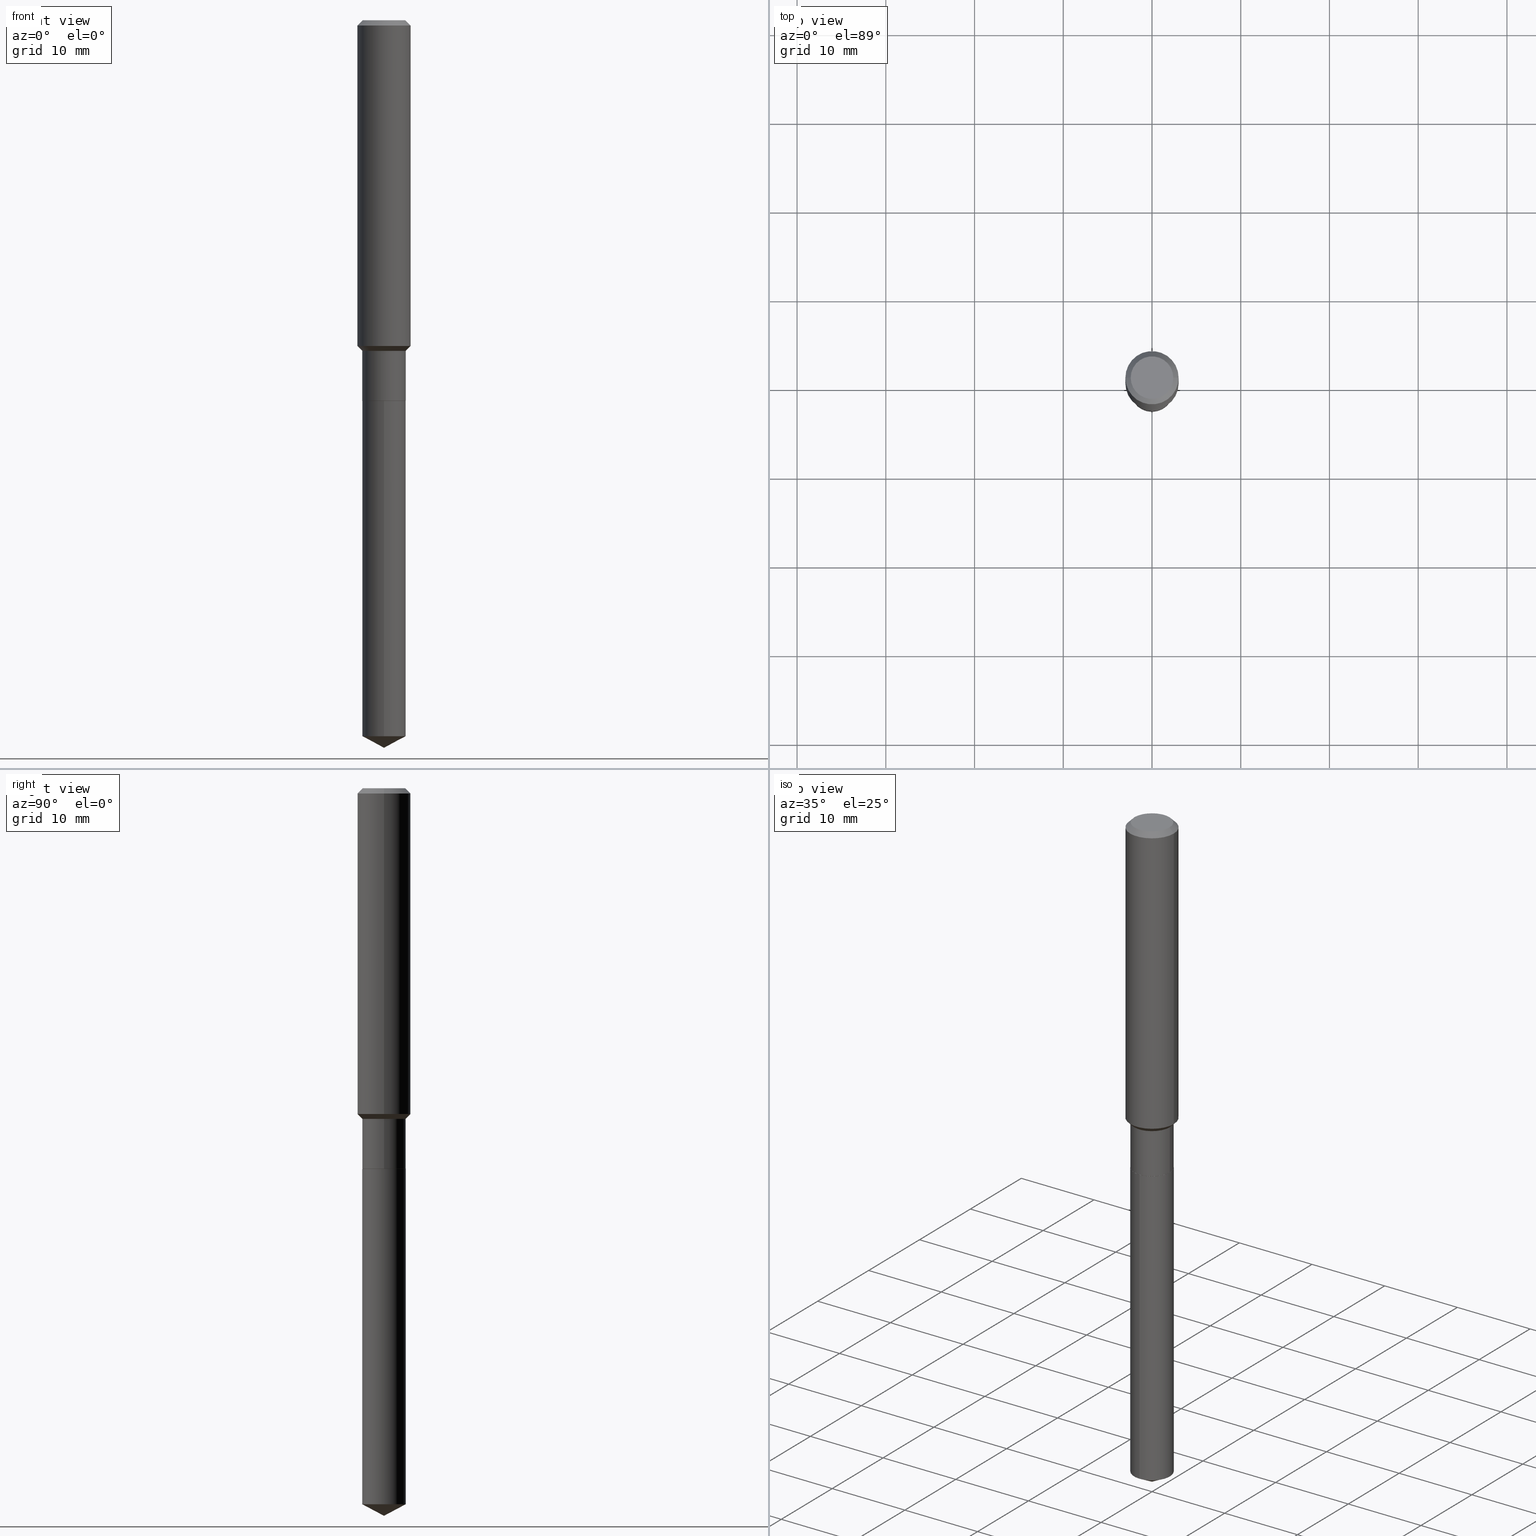
[diagram: canonical four-view strip — front | top / right | iso, engineering-drawing reading convention]
A machine part, canonical four-view strip (front | top / right | iso — engineering-drawing reading convention). The complete STEP part file that produces these views, byte-faithful:
ISO-10303-21;
HEADER;
FILE_DESCRIPTION (( 'STEP AP203' ),
    '1' );
FILE_NAME ('64819.STEP',
    '2024-04-24T19:00:35',
    ( '' ),
    ( '' ),
    'SwSTEP 2.0',
    'SolidWorks 2023',
    '' );
FILE_SCHEMA (( 'CONFIG_CONTROL_DESIGN' ));
ENDSEC;

DATA;
#1 = AXIS2_PLACEMENT_3D ( 'NONE', #297, #180, #107 ) ;
#2 = LOCAL_TIME ( 15, 0, 35.00000000000000000, #32 ) ;
#3 = DIRECTION ( 'NONE',  ( -2.445468806185136597E-29, 3.491481338843145583E-15, 1.000000000000000000 ) ) ;
#4 = CARTESIAN_POINT ( 'NONE',  ( -6.735067502627990177E-16, -0.09645000000000587825, -1.688899999999999846 ) ) ;
#5 = EDGE_LOOP ( 'NONE', ( #472, #388, #442, #458 ) ) ;
#6 = EDGE_CURVE ( 'NONE', #198, #381, #96, .T. ) ;
#7 = CARTESIAN_POINT ( 'NONE',  ( 4.128929532362984826E-29, -5.895017092502767543E-15, -1.688400000000000123 ) ) ;
#8 = ORIENTED_EDGE ( 'NONE', *, *, #49, .F. ) ;
#9 = DIRECTION ( 'NONE',  ( -6.982962677686266711E-15, -1.000000000000000000, 3.541896320645574279E-15 ) ) ;
#10 = CONICAL_SURFACE ( 'NONE', #65, 0.09594999999999997975, 0.7853981633975507526 ) ;
#11 = APPROVAL_PERSON_ORGANIZATION ( #215, #446, #102 ) ;
#12 = ORIENTED_EDGE ( 'NONE', *, *, #376, .T. ) ;
#13 = EDGE_CURVE ( 'NONE', #275, #189, #57, .T. ) ;
#14 = DIRECTION ( 'NONE',  ( -2.445459451531945961E-29, 3.491494735238948529E-15, 1.000000000000000000 ) ) ;
#15 = VERTEX_POINT ( 'NONE', #131 ) ;
#16 = ORIENTED_EDGE ( 'NONE', *, *, #473, .T. ) ;
#17 = AXIS2_PLACEMENT_3D ( 'NONE', #416, #337, #485 ) ;
#18 = ORIENTED_EDGE ( 'NONE', *, *, #196, .T. ) ;
#19 = CONICAL_SURFACE ( 'NONE', #26, 74.04434902938325536, 1.082104136236484937 ) ;
#20 = ADVANCED_FACE ( 'NONE', ( #286 ), #434, .T. ) ;
#21 = CARTESIAN_POINT ( 'NONE',  ( 7.894708622606584562E-29, -1.127154720342615507E-14, -3.228299999999999947 ) ) ;
#22 = DIRECTION ( 'NONE',  ( -2.445468806185136597E-29, 3.491481338843145583E-15, 1.000000000000000000 ) ) ;
#23 = ORIENTED_EDGE ( 'NONE', *, *, #118, .T. ) ;
#24 = CARTESIAN_POINT ( 'NONE',  ( 4.128929532362984826E-29, -5.895017092502767543E-15, -1.688400000000000123 ) ) ;
#25 = DIRECTION ( 'NONE',  ( 0.7071067811866199593, -2.468850131083015945E-15, 0.7071067811864750752 ) ) ;
#26 = AXIS2_PLACEMENT_3D ( 'NONE', #345, #348, #9 ) ;
#27 = PERSON_AND_ORGANIZATION_ROLE ( 'design_supplier' ) ;
#28 = EDGE_CURVE ( 'NONE', #198, #124, #397, .T. ) ;
#29 = CARTESIAN_POINT ( 'NONE',  ( 0.1180999999999999966, -8.926936027602933910E-16, -0.02362000000000014088 ) ) ;
#30 = APPROVAL_STATUS ( 'not_yet_approved' ) ;
#31 = DIRECTION ( 'NONE',  ( 1.000000000000000000, -6.982962677686269866E-15, 0.000000000000000000 ) ) ;
#32 = COORDINATED_UNIVERSAL_TIME_OFFSET ( 5, 0, .BEHIND. ) ;
#33 = DIRECTION ( 'NONE',  ( 1.000000000000000000, -6.982962677686269866E-15, 0.000000000000000000 ) ) ;
#34 = EDGE_CURVE ( 'NONE', #230, #267, #169, .T. ) ;
#35 = AXIS2_PLACEMENT_3D ( 'NONE', #89, #194, #274 ) ;
#36 = AXIS2_PLACEMENT_3D ( 'NONE', #353, #130, #281 ) ;
#37 = CARTESIAN_POINT ( 'NONE',  ( 4.130152266766077627E-29, -5.896762833172189046E-15, -1.688900000000000068 ) ) ;
#38 = CARTESIAN_POINT ( 'NONE',  ( 3.587747285554214477E-29, -5.122352272216779298E-15, -1.467100000000000071 ) ) ;
#39 = DIRECTION ( 'NONE',  ( -2.445468806185136597E-29, 3.491481338843145583E-15, 1.000000000000000000 ) ) ;
#40 = CLOSED_SHELL ( 'NONE', ( #488, #356, #384, #347, #184 ) ) ;
#41 = ORGANIZATION ( 'UNSPECIFIED', 'UNSPECIFIED', '' ) ;
#42 = FACE_OUTER_BOUND ( 'NONE', #352, .T. ) ;
#43 = CC_DESIGN_PERSON_AND_ORGANIZATION_ASSIGNMENT ( #295, #176, ( #420 ) ) ;
#44 = ORIENTED_EDGE ( 'NONE', *, *, #34, .F. ) ;
#45 = DIRECTION ( 'NONE',  ( 2.445468806185136597E-29, -3.491481338843145583E-15, -1.000000000000000000 ) ) ;
#46 = ORIENTED_EDGE ( 'NONE', *, *, #149, .T. ) ;
#47 = CARTESIAN_POINT ( 'NONE',  ( 5.776197320209327532E-31, -8.246878922347559293E-17, -0.02362000000000014088 ) ) ;
#48 = ORIENTED_EDGE ( 'NONE', *, *, #212, .F. ) ;
#49 = EDGE_CURVE ( 'NONE', #193, #467, #400, .T. ) ;
#50 = VECTOR ( 'NONE', #148, 39.37007874015748143 ) ;
#51 = DIRECTION ( 'NONE',  ( 1.000000000000000000, -6.982962677686266711E-15, 0.000000000000000000 ) ) ;
#52 = ORIENTED_EDGE ( 'NONE', *, *, #118, .F. ) ;
#53 = DIRECTION ( 'NONE',  ( 1.000000000000000000, -6.982962677686265922E-15, 4.876176775795935793E-29 ) ) ;
#54 = ORIENTED_EDGE ( 'NONE', *, *, #341, .T. ) ;
#55 = DIRECTION ( 'NONE',  ( 1.000000000000000000, -6.982962677686264344E-15, 0.000000000000000000 ) ) ;
#56 = EDGE_LOOP ( 'NONE', ( #329, #88, #316 ) ) ;
#57 = LINE ( 'NONE', #280, #242 ) ;
#58 = ADVANCED_FACE ( 'NONE', ( #210 ), #60, .T. ) ;
#59 = PERSON_AND_ORGANIZATION_ROLE ( 'design_owner' ) ;
#60 = CYLINDRICAL_SURFACE ( 'NONE', #200, 0.1181000000000000799 ) ;
#61 = PERSON_AND_ORGANIZATION_ROLE ( 'creator' ) ;
#62 = DIRECTION ( 'NONE',  ( -2.445468806185136597E-29, 3.491481338843145583E-15, 1.000000000000000000 ) ) ;
#63 = EDGE_CURVE ( 'NONE', #230, #239, #350, .T. ) ;
#64 = DIRECTION ( 'NONE',  ( 6.273719981627760554E-15, 0.8829475928589289868, 0.4694715627858871976 ) ) ;
#65 = AXIS2_PLACEMENT_3D ( 'NONE', #294, #377, #147 ) ;
#66 = AXIS2_PLACEMENT_3D ( 'NONE', #460, #45, #269 ) ;
#67 = APPROVAL_DATE_TIME ( #145, #410 ) ;
#68 = DIRECTION ( 'NONE',  ( -1.000000000000000000, 6.982962677686265922E-15, -4.876176775795935793E-29 ) ) ;
#69 = LINE ( 'NONE', #335, #104 ) ;
#70 = EDGE_CURVE ( 'NONE', #467, #248, #480, .T. ) ;
#71 = PRODUCT_DEFINITION_SHAPE ( 'NONE', 'NONE',  #112 ) ;
#72 = DIRECTION ( 'NONE',  ( -2.445468806185136597E-29, 3.491481338843145583E-15, 1.000000000000000000 ) ) ;
#73 = AXIS2_PLACEMENT_3D ( 'NONE', #216, #452, #108 ) ;
#74 = APPROVAL_PERSON_ORGANIZATION ( #325, #431, #322 ) ;
#75 = DIRECTION ( 'NONE',  ( -6.982962677686265133E-15, -1.000000000000000000, 2.832398127179122126E-15 ) ) ;
#76 = LINE ( 'NONE', #299, #317 ) ;
#77 = CC_DESIGN_PERSON_AND_ORGANIZATION_ASSIGNMENT ( #402, #61, ( #112 ) ) ;
#78 = FACE_OUTER_BOUND ( 'NONE', #199, .T. ) ;
#79 = EDGE_LOOP ( 'NONE', ( #91, #423, #425, #264 ) ) ;
#80 = AXIS2_PLACEMENT_3D ( 'NONE', #161, #417, #152 ) ;
#81 = PRODUCT_DEFINITION_FORMATION_WITH_SPECIFIED_SOURCE ( 'ANY', '', #285, .NOT_KNOWN. ) ;
#82 = CARTESIAN_POINT ( 'NONE',  ( 4.716267017698007905E-46, -6.733579360998555036E-32, -1.928573779297252010E-17 ) ) ;
#83 = EDGE_LOOP ( 'NONE', ( #314, #433, #162, #323 ) ) ;
#84 = CARTESIAN_POINT ( 'NONE',  ( 4.130152266766077627E-29, -5.896762833172189046E-15, -1.688900000000000068 ) ) ;
#85 = ORIENTED_EDGE ( 'NONE', *, *, #341, .F. ) ;
#86 = EDGE_CURVE ( 'NONE', #15, #267, #327, .T. ) ;
#87 = CARTESIAN_POINT ( 'NONE',  ( 3.587747285554214477E-29, -5.122352272216779298E-15, -1.467100000000000071 ) ) ;
#88 = ORIENTED_EDGE ( 'NONE', *, *, #28, .T. ) ;
#89 = CARTESIAN_POINT ( 'NONE',  ( 3.587747285554214477E-29, -5.122352272216779298E-15, -1.467100000000000071 ) ) ;
#90 = ORIENTED_EDGE ( 'NONE', *, *, #70, .F. ) ;
#91 = ORIENTED_EDGE ( 'NONE', *, *, #376, .F. ) ;
#92 = EDGE_CURVE ( 'NONE', #275, #15, #486, .T. ) ;
#93 = EDGE_LOOP ( 'NONE', ( #52, #46, #346, #362 ) ) ;
#94 = DIRECTION ( 'NONE',  ( -2.445468806185136597E-29, 3.491481338843145583E-15, 1.000000000000000000 ) ) ;
#95 = AXIS2_PLACEMENT_3D ( 'NONE', #37, #370, #31 ) ;
#96 = LINE ( 'NONE', #282, #379 ) ;
#97 = LINE ( 'NONE', #166, #117 ) ;
#98 = DIRECTION ( 'NONE',  ( -2.445468806185136597E-29, 3.491481338843145583E-15, 1.000000000000000000 ) ) ;
#99 = ADVANCED_FACE ( 'NONE', ( #450 ), #255, .F. ) ;
#100 = APPLICATION_PROTOCOL_DEFINITION ( 'international standard', 'config_control_design', 1994, #478 ) ;
#101 = CARTESIAN_POINT ( 'NONE',  ( 0.09594999999999997975, -6.566778102096186571E-15, -1.688900000000000068 ) ) ;
#102 = APPROVAL_ROLE ( '' ) ;
#103 = DIRECTION ( 'NONE',  ( 1.000000000000000000, -6.982962677686267499E-15, 0.000000000000000000 ) ) ;
#104 = VECTOR ( 'NONE', #214, 39.37007874015748143 ) ;
#105 = SECURITY_CLASSIFICATION_LEVEL ( 'unclassified' ) ;
#106 = CARTESIAN_POINT ( 'NONE',  ( 0.1181000000000001632, -5.871449593465574484E-15, -1.445450000000000124 ) ) ;
#107 = DIRECTION ( 'NONE',  ( 6.982962677686265922E-15, 1.000000000000000000, -3.491494735238948529E-15 ) ) ;
#108 = DIRECTION ( 'NONE',  ( 1.000000000000000000, -6.982962677686269866E-15, 0.000000000000000000 ) ) ;
#109 = LOCAL_TIME ( 15, 0, 35.00000000000000000, #254 ) ;
#110 = AXIS2_PLACEMENT_3D ( 'NONE', #361, #315, #396 ) ;
#111 = DIRECTION ( 'NONE',  ( 1.000000000000000000, -6.982962677686267499E-15, 0.000000000000000000 ) ) ;
#112 = PRODUCT_DEFINITION ( 'UNKNOWN', '', #81, #412 ) ;
#113 = DIRECTION ( 'NONE',  ( -2.445459451531945961E-29, 3.491494735238948529E-15, 1.000000000000000000 ) ) ;
#114 = DIRECTION ( 'NONE',  ( -6.982962677686265133E-15, -1.000000000000000000, 2.832398127179122126E-15 ) ) ;
#115 = EDGE_LOOP ( 'NONE', ( #349, #223, #436, #344 ) ) ;
#116 = VECTOR ( 'NONE', #261, 39.37007874015748143 ) ;
#117 = VECTOR ( 'NONE', #404, 39.37007874015748143 ) ;
#118 = EDGE_CURVE ( 'NONE', #463, #405, #76, .T. ) ;
#119 = CARTESIAN_POINT ( 'NONE',  ( 6.853184686406942899E-16, 0.09644999999999409601, -1.688900000000000290 ) ) ;
#120 = ORIENTED_EDGE ( 'NONE', *, *, #165, .T. ) ;
#121 = CARTESIAN_POINT ( 'NONE',  ( 0.000000000000000000, 0.000000000000000000, 0.000000000000000000 ) ) ;
#122 = EDGE_LOOP ( 'NONE', ( #312, #23, #228, #8 ) ) ;
#123 = FACE_OUTER_BOUND ( 'NONE', #115, .T. ) ;
#124 = VERTEX_POINT ( 'NONE', #455 ) ;
#125 = CIRCLE ( 'NONE', #95, 0.09594999999999997975 ) ;
#126 = CARTESIAN_POINT ( 'NONE',  ( 0.09644999999999999407, -6.568523842765608074E-15, -1.688400000000000123 ) ) ;
#127 = LOCAL_TIME ( 15, 0, 35.00000000000000000, #484 ) ;
#128 = EDGE_LOOP ( 'NONE', ( #16, #120, #48, #90 ) ) ;
#129 = EDGE_CURVE ( 'NONE', #124, #307, #411, .T. ) ;
#130 = DIRECTION ( 'NONE',  ( -2.445459451531945961E-29, 3.491494735238948529E-15, 1.000000000000000000 ) ) ;
#131 = CARTESIAN_POINT ( 'NONE',  ( 0.09447999999999998066, -7.704367267948738690E-16, -1.928573779296752193E-17 ) ) ;
#132 = FACE_OUTER_BOUND ( 'NONE', #272, .T. ) ;
#133 = DIRECTION ( 'NONE',  ( -0.7071067811865459074, 2.468850131082240100E-15, -0.7071067811865491270 ) ) ;
#134 = EDGE_CURVE ( 'NONE', #381, #305, #69, .T. ) ;
#135 = AXIS2_PLACEMENT_3D ( 'NONE', #321, #208, #241 ) ;
#136 = ORIENTED_EDGE ( 'NONE', *, *, #149, .F. ) ;
#137 = COORDINATED_UNIVERSAL_TIME_OFFSET ( 5, 0, .BEHIND. ) ;
#138 = ORIENTED_EDGE ( 'NONE', *, *, #13, .T. ) ;
#139 = CALENDAR_DATE ( 2024, 24, 4 ) ;
#140 = CARTESIAN_POINT ( 'NONE',  ( -0.09644999999999996632, 6.853184686406163899E-16, -4.744312894550855181E-30 ) ) ;
#141 = CALENDAR_DATE ( 2024, 24, 4 ) ;
#142 = CARTESIAN_POINT ( 'NONE',  ( 0.09594999999999997975, -6.566778102096186571E-15, -1.688900000000000068 ) ) ;
#143 = CIRCLE ( 'NONE', #224, 0.09644999999999995244 ) ;
#144 = AXIS2_PLACEMENT_3D ( 'NONE', #168, #197, #279 ) ;
#145 = DATE_AND_TIME ( #139, #2 ) ;
#146 = LINE ( 'NONE', #330, #173 ) ;
#147 = DIRECTION ( 'NONE',  ( 1.000000000000000000, -6.982962677686269866E-15, 0.000000000000000000 ) ) ;
#148 = DIRECTION ( 'NONE',  ( -2.445459451531945961E-29, 3.491494735238948529E-15, 1.000000000000000000 ) ) ;
#149 = EDGE_CURVE ( 'NONE', #463, #193, #125, .T. ) ;
#150 = CIRCLE ( 'NONE', #406, 0.1180999999999999966 ) ;
#151 = LOCAL_TIME ( 15, 0, 35.00000000000000000, #475 ) ;
#152 = DIRECTION ( 'NONE',  ( 1.000000000000000000, -6.982962677686263555E-15, 0.000000000000000000 ) ) ;
#153 = CYLINDRICAL_SURFACE ( 'NONE', #235, 0.09644999999999999407 ) ;
#154 = ORIENTED_EDGE ( 'NONE', *, *, #296, .T. ) ;
#155 = ADVANCED_FACE ( 'NONE', ( #256 ), #333, .T. ) ;
#156 = DIRECTION ( 'NONE',  ( 1.000000000000000000, -6.982962677686266711E-15, 0.000000000000000000 ) ) ;
#157 = VERTEX_POINT ( 'NONE', #482 ) ;
#158 = AXIS2_PLACEMENT_3D ( 'NONE', #304, #188, #53 ) ;
#159 = CYLINDRICAL_SURFACE ( 'NONE', #252, 0.1181000000000000799 ) ;
#160 = ORIENTED_EDGE ( 'NONE', *, *, #28, .F. ) ;
#161 = CARTESIAN_POINT ( 'NONE',  ( 3.534802885900305926E-29, -5.046761701230824643E-15, -1.445450000000000124 ) ) ;
#162 = ORIENTED_EDGE ( 'NONE', *, *, #70, .T. ) ;
#163 =( CONVERSION_BASED_UNIT ( 'INCH', #172 ) LENGTH_UNIT ( ) NAMED_UNIT ( #432 ) );
#164 = EDGE_LOOP ( 'NONE', ( #171, #354, #138, #465 ) ) ;
#165 = EDGE_CURVE ( 'NONE', #405, #157, #253, .T. ) ;
#166 = CARTESIAN_POINT ( 'NONE',  ( 0.09644999999999995244, -5.795859022479619040E-15, -1.467100000000000071 ) ) ;
#167 = ORIENTED_EDGE ( 'NONE', *, *, #273, .F. ) ;
#168 = CARTESIAN_POINT ( 'NONE',  ( 4.130152266766077627E-29, -5.896762833172189046E-15, -1.688900000000000068 ) ) ;
#169 = LINE ( 'NONE', #474, #276 ) ;
#170 = APPROVAL_STATUS ( 'not_yet_approved' ) ;
#171 = ORIENTED_EDGE ( 'NONE', *, *, #86, .F. ) ;
#172 = LENGTH_MEASURE_WITH_UNIT ( LENGTH_MEASURE( 0.02539999999999999897 ), #394 );
#173 = VECTOR ( 'NONE', #219, 39.37007874015748143 ) ;
#174 = CONICAL_SURFACE ( 'NONE', #66, 0.1180999999999999966, 0.7853981633974460586 ) ;
#175 = DIRECTION ( 'NONE',  ( -2.445468806185136877E-29, 3.491481338843145188E-15, 1.000000000000000000 ) ) ;
#176 = PERSON_AND_ORGANIZATION_ROLE ( 'classification_officer' ) ;
#177 = ORIENTED_EDGE ( 'NONE', *, *, #63, .F. ) ;
#178 = DIRECTION ( 'NONE',  ( 0.7071067811865459074, -7.319954787623249734E-15, -0.7071067811865491270 ) ) ;
#179 = CC_DESIGN_PERSON_AND_ORGANIZATION_ASSIGNMENT ( #284, #59, ( #285 ) ) ;
#180 = DIRECTION ( 'NONE',  ( 2.445459451531945400E-29, -3.491494735238948529E-15, -1.000000000000000000 ) ) ;
#181 = AXIS2_PLACEMENT_3D ( 'NONE', #351, #302, #156 ) ;
#182 = CIRCLE ( 'NONE', #144, 0.09644999999999999407 ) ;
#183 = CARTESIAN_POINT ( 'NONE',  ( 6.853184686406577065E-16, 0.09644999999999409601, -1.688900000000000290 ) ) ;
#184 = ADVANCED_FACE ( 'NONE', ( #413 ), #291, .F. ) ;
#185 = CARTESIAN_POINT ( 'NONE',  ( 4.130152266766077627E-29, -5.896762833172189046E-15, -1.688900000000000068 ) ) ;
#186 = DIRECTION ( 'NONE',  ( -0.7071067811866199593, 7.493145998870616062E-15, 0.7071067811864750752 ) ) ;
#187 = VECTOR ( 'NONE', #178, 39.37007874015748143 ) ;
#188 = DIRECTION ( 'NONE',  ( -2.438088387897960049E-29, 3.491481338843145188E-15, 1.000000000000000000 ) ) ;
#189 = VERTEX_POINT ( 'NONE', #444 ) ;
#190 = LINE ( 'NONE', #391, #202 ) ;
#191 = ORIENTED_EDGE ( 'NONE', *, *, #13, .F. ) ;
#192 = CARTESIAN_POINT ( 'NONE',  ( 0.000000000000000000, 0.000000000000000000, 0.000000000000000000 ) ) ;
#193 = VERTEX_POINT ( 'NONE', #142 ) ;
#194 = DIRECTION ( 'NONE',  ( -2.445468806185136597E-29, 3.491481338843145583E-15, 1.000000000000000000 ) ) ;
#195 = EDGE_LOOP ( 'NONE', ( #429, #154, #355, #471 ) ) ;
#196 = EDGE_CURVE ( 'NONE', #239, #189, #146, .T. ) ;
#197 = DIRECTION ( 'NONE',  ( -2.445459451531945961E-29, 3.491494735238948529E-15, 1.000000000000000000 ) ) ;
#198 = VERTEX_POINT ( 'NONE', #490 ) ;
#199 = EDGE_LOOP ( 'NONE', ( #319, #136 ) ) ;
#200 = AXIS2_PLACEMENT_3D ( 'NONE', #440, #98, #246 ) ;
#201 = MECHANICAL_CONTEXT ( 'NONE', #478, 'mechanical' ) ;
#202 = VECTOR ( 'NONE', #456, 39.37007874015748143 ) ;
#203 = DIRECTION ( 'NONE',  ( -6.165590087286828929E-15, -0.8829475928589255451, 0.4694715627858933038 ) ) ;
#204 = EDGE_CURVE ( 'NONE', #381, #124, #259, .T. ) ;
#205 = APPLICATION_PROTOCOL_DEFINITION ( 'international standard', 'config_control_design', 1994, #263 ) ;
#206 = EDGE_LOOP ( 'NONE', ( #289, #54 ) ) ;
#207 = CYLINDRICAL_SURFACE ( 'NONE', #36, 0.09644999999999999407 ) ;
#208 = DIRECTION ( 'NONE',  ( -2.445468806185136597E-29, 3.491481338843145583E-15, 1.000000000000000000 ) ) ;
#209 = PERSON_AND_ORGANIZATION ( #220, #41 ) ;
#210 = FACE_OUTER_BOUND ( 'NONE', #395, .T. ) ;
#211 = DATE_TIME_ROLE ( 'classification_date' ) ;
#212 = EDGE_CURVE ( 'NONE', #248, #157, #143, .T. ) ;
#213 = CARTESIAN_POINT ( 'NONE',  ( 4.716267017698007905E-46, -6.733579360998555036E-32, -1.928573779297252010E-17 ) ) ;
#214 = DIRECTION ( 'NONE',  ( -2.445459451531945961E-29, 3.491494735238948529E-15, 1.000000000000000000 ) ) ;
#215 = PERSON_AND_ORGANIZATION ( #220, #41 ) ;
#216 = CARTESIAN_POINT ( 'NONE',  ( 4.130152266766077627E-29, -5.896762833172189046E-15, -1.688900000000000068 ) ) ;
#217 = AXIS2_PLACEMENT_3D ( 'NONE', #185, #375, #33 ) ;
#218 = LOCAL_TIME ( 15, 0, 35.00000000000000000, #137 ) ;
#219 = DIRECTION ( 'NONE',  ( -2.445468806185136877E-29, 3.491481338843145188E-15, 1.000000000000000000 ) ) ;
#220 = PERSON ( 'UNSPECIFIED', 'UNSPECIFIED', 'UNSPECIFIED', ('UNSPECIFIED'), ('UNSPECIFIED'), ('UNSPECIFIED') ) ;
#221 = FACE_OUTER_BOUND ( 'NONE', #93, .T. ) ;
#222 = CARTESIAN_POINT ( 'NONE',  ( -6.735067502627625329E-16, -0.09645000000001105467, -3.177016625316249954 ) ) ;
#223 = ORIENTED_EDGE ( 'NONE', *, *, #310, .T. ) ;
#224 = AXIS2_PLACEMENT_3D ( 'NONE', #38, #72, #103 ) ;
#225 = AXIS2_PLACEMENT_3D ( 'NONE', #24, #22, #55 ) ;
#226 = FACE_OUTER_BOUND ( 'NONE', #56, .T. ) ;
#227 = PRODUCT_RELATED_PRODUCT_CATEGORY ( 'detail', '', ( #285 ) ) ;
#228 = ORIENTED_EDGE ( 'NONE', *, *, #473, .F. ) ;
#229 = FACE_OUTER_BOUND ( 'NONE', #195, .T. ) ;
#230 = VERTEX_POINT ( 'NONE', #106 ) ;
#231 = DIRECTION ( 'NONE',  ( -2.445459451531945961E-29, 3.491494735238948529E-15, 1.000000000000000000 ) ) ;
#232 = ORIENTED_EDGE ( 'NONE', *, *, #212, .T. ) ;
#233 = VECTOR ( 'NONE', #64, 39.37007874015747433 ) ;
#234 = ADVANCED_FACE ( 'NONE', ( #221 ), #10, .T. ) ;
#235 = AXIS2_PLACEMENT_3D ( 'NONE', #84, #113, #114 ) ;
#236 = DIRECTION ( 'NONE',  ( -2.445468806185136597E-29, 3.491481338843145583E-15, 1.000000000000000000 ) ) ;
#237 = ORIENTED_EDGE ( 'NONE', *, *, #6, .T. ) ;
#238 =( NAMED_UNIT ( * ) PLANE_ANGLE_UNIT ( ) SI_UNIT ( $, .RADIAN. ) );
#239 = VERTEX_POINT ( 'NONE', #298 ) ;
#240 = EDGE_CURVE ( 'NONE', #193, #463, #251, .T. ) ;
#241 = DIRECTION ( 'NONE',  ( 1.000000000000000000, -6.982962677686267499E-15, 4.876176775795936353E-29 ) ) ;
#242 = VECTOR ( 'NONE', #133, 39.37007874015748143 ) ;
#243 = CONICAL_SURFACE ( 'NONE', #454, 74.04434902938325536, 1.082104136236484937 ) ;
#244 = DIRECTION ( 'NONE',  ( -2.445468806185136877E-29, 3.491481338843145188E-15, 1.000000000000000000 ) ) ;
#245 = DIRECTION ( 'NONE',  ( 0.000000000000000000, 0.000000000000000000, 1.000000000000000000 ) ) ;
#246 = DIRECTION ( 'NONE',  ( 1.000000000000000000, -6.982962677686266711E-15, 4.876176775795936353E-29 ) ) ;
#247 = DATE_AND_TIME ( #288, #218 ) ;
#248 = VERTEX_POINT ( 'NONE', #371 ) ;
#249 = ADVANCED_FACE ( 'NONE', ( #449 ), #470, .T. ) ;
#250 = APPROVAL_DATE_TIME ( #407, #446 ) ;
#251 = CIRCLE ( 'NONE', #217, 0.09594999999999997975 ) ;
#252 = AXIS2_PLACEMENT_3D ( 'NONE', #121, #236, #271 ) ;
#253 = LINE ( 'NONE', #140, #116 ) ;
#254 = COORDINATED_UNIVERSAL_TIME_OFFSET ( 5, 0, .BEHIND. ) ;
#255 = PLANE ( 'NONE',  #308 ) ;
#256 = FACE_OUTER_BOUND ( 'NONE', #418, .T. ) ;
#257 = EDGE_CURVE ( 'NONE', #307, #305, #428, .T. ) ;
#258 = CARTESIAN_POINT ( 'NONE',  ( 4.130152266766077627E-29, -5.896762833172189046E-15, -1.688900000000000068 ) ) ;
#259 = CIRCLE ( 'NONE', #17, 0.09644999999999999407 ) ;
#260 = AXIS2_PLACEMENT_3D ( 'NONE', #7, #311, #313 ) ;
#261 = DIRECTION ( 'NONE',  ( -2.445468806185136877E-29, 3.491481338843145188E-15, 1.000000000000000000 ) ) ;
#262 = CARTESIAN_POINT ( 'NONE',  ( -8.838323861622067614E-28, 1.261888528186036828E-13, 36.14177874015747705 ) ) ;
#263 = APPLICATION_CONTEXT ( 'configuration controlled 3d designs of mechanical parts and assemblies' ) ;
#264 = ORIENTED_EDGE ( 'NONE', *, *, #310, .F. ) ;
#265 = ADVANCED_FACE ( 'NONE', ( #78 ), #427, .F. ) ;
#266 = CARTESIAN_POINT ( 'NONE',  ( -0.09447999999999998066, 7.009847083995354710E-16, -1.928573779297727792E-17 ) ) ;
#267 = VERTEX_POINT ( 'NONE', #306 ) ;
#268 = APPROVAL_PERSON_ORGANIZATION ( #209, #410, #369 ) ;
#269 = DIRECTION ( 'NONE',  ( -1.000000000000000000, 6.982962677686266711E-15, 0.000000000000000000 ) ) ;
#270 = EDGE_LOOP ( 'NONE', ( #476, #383 ) ) ;
#271 = DIRECTION ( 'NONE',  ( 1.000000000000000000, -6.982962677686266711E-15, 4.876176775795936353E-29 ) ) ;
#272 = EDGE_LOOP ( 'NONE', ( #85, #386, #278, #191 ) ) ;
#273 = EDGE_CURVE ( 'NONE', #267, #189, #150, .T. ) ;
#274 = DIRECTION ( 'NONE',  ( 1.000000000000000000, -6.982962677686267499E-15, 0.000000000000000000 ) ) ;
#275 = VERTEX_POINT ( 'NONE', #266 ) ;
#276 = VECTOR ( 'NONE', #244, 39.37007874015748143 ) ;
#277 = FACE_OUTER_BOUND ( 'NONE', #5, .T. ) ;
#278 = ORIENTED_EDGE ( 'NONE', *, *, #273, .T. ) ;
#279 = DIRECTION ( 'NONE',  ( -6.982962677686265133E-15, -1.000000000000000000, 2.832398127179122126E-15 ) ) ;
#280 = CARTESIAN_POINT ( 'NONE',  ( -0.1180999999999999966, 7.422191030112725094E-16, -0.02362000000000014088 ) ) ;
#281 = DIRECTION ( 'NONE',  ( -6.982962677686265133E-15, -1.000000000000000000, 2.832398127179122126E-15 ) ) ;
#282 = CARTESIAN_POINT ( 'NONE',  ( 7.894676747380581045E-29, -1.127159245377189992E-14, -3.228299999999999947 ) ) ;
#283 = AXIS2_PLACEMENT_3D ( 'NONE', #403, #62, #365 ) ;
#284 = PERSON_AND_ORGANIZATION ( #220, #41 ) ;
#285 = PRODUCT ( '64819', '64819', '', ( #201 ) ) ;
#286 = FACE_OUTER_BOUND ( 'NONE', #128, .T. ) ;
#287 = MANIFOLD_SOLID_BREP ( 'Body-Move/Copy2[2]', #477 ) ;
#288 = CALENDAR_DATE ( 2024, 24, 4 ) ;
#289 = ORIENTED_EDGE ( 'NONE', *, *, #92, .T. ) ;
#290 = PERSON_AND_ORGANIZATION ( #220, #41 ) ;
#291 = PLANE ( 'NONE',  #1 ) ;
#292 = DATE_AND_TIME ( #141, #127 ) ;
#293 = CIRCLE ( 'NONE', #398, 0.09644999999999999407 ) ;
#294 = CARTESIAN_POINT ( 'NONE',  ( 4.130152266766077627E-29, -5.896762833172189046E-15, -1.688900000000000068 ) ) ;
#295 = PERSON_AND_ORGANIZATION ( #220, #41 ) ;
#296 = EDGE_CURVE ( 'NONE', #124, #381, #293, .T. ) ;
#297 = CARTESIAN_POINT ( 'NONE',  ( 4.130152266766077627E-29, -5.896762833172189046E-15, -1.688900000000000068 ) ) ;
#298 = CARTESIAN_POINT ( 'NONE',  ( -0.1181000000000001632, -4.207610730298144868E-15, -1.445450000000000124 ) ) ;
#299 = CARTESIAN_POINT ( 'NONE',  ( -0.09594999999999997975, -5.214997078210373062E-15, -1.688900000000000068 ) ) ;
#300 = VECTOR ( 'NONE', #175, 39.37007874015748143 ) ;
#301 =( GEOMETRIC_REPRESENTATION_CONTEXT ( 3 ) GLOBAL_UNCERTAINTY_ASSIGNED_CONTEXT ( ( #338 ) ) GLOBAL_UNIT_ASSIGNED_CONTEXT ( ( #163, #238, #364 ) ) REPRESENTATION_CONTEXT ( 'NONE', 'WORKASPACE' ) );
#302 = DIRECTION ( 'NONE',  ( -2.445468806185136597E-29, 3.491481338843145583E-15, 1.000000000000000000 ) ) ;
#303 = CC_DESIGN_PERSON_AND_ORGANIZATION_ASSIGNMENT ( #290, #27, ( #81 ) ) ;
#304 = CARTESIAN_POINT ( 'NONE',  ( 4.130152266766077627E-29, -5.896762833172189046E-15, -1.688900000000000068 ) ) ;
#305 = VERTEX_POINT ( 'NONE', #4 ) ;
#306 = CARTESIAN_POINT ( 'NONE',  ( 0.1180999999999999966, -9.071566814582237199E-16, -0.02362000000000014088 ) ) ;
#307 = VERTEX_POINT ( 'NONE', #119 ) ;
#308 = AXIS2_PLACEMENT_3D ( 'NONE', #374, #408, #68 ) ;
#309 = CIRCLE ( 'NONE', #225, 0.09644999999999999407 ) ;
#310 = EDGE_CURVE ( 'NONE', #239, #230, #340, .T. ) ;
#311 = DIRECTION ( 'NONE',  ( -2.445468806185136597E-29, 3.491481338843145583E-15, 1.000000000000000000 ) ) ;
#312 = ORIENTED_EDGE ( 'NONE', *, *, #240, .T. ) ;
#313 = DIRECTION ( 'NONE',  ( 1.000000000000000000, -6.982962677686264344E-15, 0.000000000000000000 ) ) ;
#314 = ORIENTED_EDGE ( 'NONE', *, *, #165, .F. ) ;
#315 = DIRECTION ( 'NONE',  ( 2.445468806185136597E-29, -3.491481338843145583E-15, -1.000000000000000000 ) ) ;
#316 = ORIENTED_EDGE ( 'NONE', *, *, #204, .F. ) ;
#317 = VECTOR ( 'NONE', #186, 39.37007874015748143 ) ;
#318 = DIRECTION ( 'NONE',  ( 1.000000000000000000, -6.982962677686267499E-15, 0.000000000000000000 ) ) ;
#319 = ORIENTED_EDGE ( 'NONE', *, *, #240, .F. ) ;
#320 = CC_DESIGN_DATE_AND_TIME_ASSIGNMENT ( #292, #211, ( #420 ) ) ;
#321 = CARTESIAN_POINT ( 'NONE',  ( 0.000000000000000000, 0.000000000000000000, 0.000000000000000000 ) ) ;
#322 = APPROVAL_ROLE ( '' ) ;
#323 = ORIENTED_EDGE ( 'NONE', *, *, #331, .F. ) ;
#324 = AXIS2_PLACEMENT_3D ( 'NONE', #336, #489, #111 ) ;
#325 = PERSON_AND_ORGANIZATION ( #220, #41 ) ;
#326 = EDGE_CURVE ( 'NONE', #189, #267, #357, .T. ) ;
#327 = LINE ( 'NONE', #29, #187 ) ;
#328 = APPROVAL_STATUS ( 'not_yet_approved' ) ;
#329 = ORIENTED_EDGE ( 'NONE', *, *, #6, .F. ) ;
#330 = CARTESIAN_POINT ( 'NONE',  ( -0.1181000000000000799, 8.391509709326788873E-16, -5.809262341591047988E-30 ) ) ;
#331 = EDGE_CURVE ( 'NONE', #157, #248, #461, .T. ) ;
#332 = PERSON_AND_ORGANIZATION ( #220, #41 ) ;
#333 = CONICAL_SURFACE ( 'NONE', #324, 0.09644999999999995244, 0.7853981633974526089 ) ;
#334 = CIRCLE ( 'NONE', #367, 0.09447999999999998066 ) ;
#335 = CARTESIAN_POINT ( 'NONE',  ( -6.735067502627990177E-16, -0.09645000000000587825, -1.688899999999999846 ) ) ;
#336 = CARTESIAN_POINT ( 'NONE',  ( 3.587747285554214477E-29, -5.122352272216779298E-15, -1.467100000000000071 ) ) ;
#337 = DIRECTION ( 'NONE',  ( -2.445459451531945961E-29, 3.491494735238948529E-15, 1.000000000000000000 ) ) ;
#338 = UNCERTAINTY_MEASURE_WITH_UNIT (LENGTH_MEASURE( 1.000000000000000082E-05 ), #163, 'distance_accuracy_value', 'NONE');
#339 = DIRECTION ( 'NONE',  ( -2.445468806185136597E-29, 3.491481338843145583E-15, 1.000000000000000000 ) ) ;
#340 = CIRCLE ( 'NONE', #80, 0.1181000000000001632 ) ;
#341 = EDGE_CURVE ( 'NONE', #15, #275, #334, .T. ) ;
#342 = CC_DESIGN_APPROVAL ( #446, ( #420 ) ) ;
#343 = DIRECTION ( 'NONE',  ( -2.445468806185136597E-29, 3.491481338843145583E-15, 1.000000000000000000 ) ) ;
#344 = ORIENTED_EDGE ( 'NONE', *, *, #326, .F. ) ;
#345 = CARTESIAN_POINT ( 'NONE',  ( -8.838323861622067614E-28, 1.261888528186036828E-13, 36.14177874015747705 ) ) ;
#346 = ORIENTED_EDGE ( 'NONE', *, *, #49, .T. ) ;
#347 = ADVANCED_FACE ( 'NONE', ( #229 ), #153, .T. ) ;
#348 = DIRECTION ( 'NONE',  ( -2.445459451531945961E-29, 3.491494735238948529E-15, 1.000000000000000000 ) ) ;
#349 = ORIENTED_EDGE ( 'NONE', *, *, #196, .F. ) ;
#350 = CIRCLE ( 'NONE', #283, 0.1181000000000001632 ) ;
#351 = CARTESIAN_POINT ( 'NONE',  ( 5.776197320209327532E-31, -8.246878922347559293E-17, -0.02362000000000014088 ) ) ;
#352 = EDGE_LOOP ( 'NONE', ( #160, #237, #392 ) ) ;
#353 = CARTESIAN_POINT ( 'NONE',  ( 4.130152266766077627E-29, -5.896762833172189046E-15, -1.688900000000000068 ) ) ;
#354 = ORIENTED_EDGE ( 'NONE', *, *, #92, .F. ) ;
#355 = ORIENTED_EDGE ( 'NONE', *, *, #134, .T. ) ;
#356 = ADVANCED_FACE ( 'NONE', ( #226 ), #243, .T. ) ;
#357 = CIRCLE ( 'NONE', #181, 0.1180999999999999966 ) ;
#358 = CC_DESIGN_APPROVAL ( #410, ( #81 ) ) ;
#359 = CARTESIAN_POINT ( 'NONE',  ( 0.000000000000000000, 0.000000000000000000, 0.000000000000000000 ) ) ;
#360 = ORIENTED_EDGE ( 'NONE', *, *, #63, .T. ) ;
#361 = CARTESIAN_POINT ( 'NONE',  ( 5.776197320209327532E-31, -8.246878922347559293E-17, -0.02362000000000014088 ) ) ;
#362 = ORIENTED_EDGE ( 'NONE', *, *, #401, .F. ) ;
#363 = ADVANCED_FACE ( 'NONE', ( #382 ), #174, .T. ) ;
#364 =( NAMED_UNIT ( * ) SI_UNIT ( $, .STERADIAN. ) SOLID_ANGLE_UNIT ( ) );
#365 = DIRECTION ( 'NONE',  ( 1.000000000000000000, -6.982962677686263555E-15, 0.000000000000000000 ) ) ;
#366 = AXIS2_PLACEMENT_3D ( 'NONE', #258, #414, #75 ) ;
#367 = AXIS2_PLACEMENT_3D ( 'NONE', #82, #343, #457 ) ;
#368 = CARTESIAN_POINT ( 'NONE',  ( 0.09644999999999996632, -6.735067502628402357E-16, 4.703072500255178901E-30 ) ) ;
#369 = APPROVAL_ROLE ( '' ) ;
#370 = DIRECTION ( 'NONE',  ( -2.445468806185136597E-29, 3.491481338843145583E-15, 1.000000000000000000 ) ) ;
#371 = CARTESIAN_POINT ( 'NONE',  ( 0.09644999999999995244, -5.795859022479619040E-15, -1.467100000000000071 ) ) ;
#372 = ADVANCED_FACE ( 'NONE', ( #464 ), #387, .T. ) ;
#373 = AXIS2_PLACEMENT_3D ( 'NONE', #359, #245, #399 ) ;
#374 = CARTESIAN_POINT ( 'NONE',  ( 2.358133508849003952E-46, -3.366789680499277518E-32, -9.642868896486260050E-18 ) ) ;
#375 = DIRECTION ( 'NONE',  ( -2.445468806185136597E-29, 3.491481338843145583E-15, 1.000000000000000000 ) ) ;
#376 = EDGE_CURVE ( 'NONE', #157, #239, #190, .T. ) ;
#377 = DIRECTION ( 'NONE',  ( -2.445468806185136597E-29, 3.491481338843145583E-15, 1.000000000000000000 ) ) ;
#378 = DIRECTION ( 'NONE',  ( 1.000000000000000000, -6.982962677686267499E-15, 4.876176775795936353E-29 ) ) ;
#379 = VECTOR ( 'NONE', #203, 39.37007874015748143 ) ;
#380 = CIRCLE ( 'NONE', #260, 0.09644999999999999407 ) ;
#381 = VERTEX_POINT ( 'NONE', #222 ) ;
#382 = FACE_OUTER_BOUND ( 'NONE', #164, .T. ) ;
#383 = ORIENTED_EDGE ( 'NONE', *, *, #257, .T. ) ;
#384 = ADVANCED_FACE ( 'NONE', ( #42 ), #19, .T. ) ;
#385 = DIRECTION ( 'NONE',  ( -6.982962677686266711E-15, -1.000000000000000000, 3.541896320645574279E-15 ) ) ;
#386 = ORIENTED_EDGE ( 'NONE', *, *, #86, .T. ) ;
#387 = CYLINDRICAL_SURFACE ( 'NONE', #430, 0.09644999999999996632 ) ;
#388 = ORIENTED_EDGE ( 'NONE', *, *, #129, .T. ) ;
#389 = CC_DESIGN_SECURITY_CLASSIFICATION ( #420, ( #81 ) ) ;
#390 = CONICAL_SURFACE ( 'NONE', #462, 0.09644999999999995244, 0.7853981633974526089 ) ;
#391 = CARTESIAN_POINT ( 'NONE',  ( -0.09644999999999995244, -4.437033803576162415E-15, -1.467100000000000071 ) ) ;
#392 = ORIENTED_EDGE ( 'NONE', *, *, #296, .F. ) ;
#393 = CC_DESIGN_PERSON_AND_ORGANIZATION_ASSIGNMENT ( #332, #481, ( #81 ) ) ;
#394 =( LENGTH_UNIT ( ) NAMED_UNIT ( * ) SI_UNIT ( $, .METRE. ) );
#395 = EDGE_LOOP ( 'NONE', ( #360, #18, #167, #44 ) ) ;
#396 = DIRECTION ( 'NONE',  ( -1.000000000000000000, 6.982962677686266711E-15, 0.000000000000000000 ) ) ;
#397 = LINE ( 'NONE', #21, #233 ) ;
#398 = AXIS2_PLACEMENT_3D ( 'NONE', #422, #14, #419 ) ;
#399 = DIRECTION ( 'NONE',  ( 1.000000000000000000, 0.000000000000000000, 0.000000000000000000 ) ) ;
#400 = LINE ( 'NONE', #101, #437 ) ;
#401 = EDGE_CURVE ( 'NONE', #405, #467, #380, .T. ) ;
#402 = PERSON_AND_ORGANIZATION ( #220, #41 ) ;
#403 = CARTESIAN_POINT ( 'NONE',  ( 3.534802885900305926E-29, -5.046761701230824643E-15, -1.445450000000000124 ) ) ;
#404 = DIRECTION ( 'NONE',  ( 0.7071067811865505703, -2.468850131082288615E-15, 0.7071067811865444641 ) ) ;
#405 = VERTEX_POINT ( 'NONE', #466 ) ;
#406 = AXIS2_PLACEMENT_3D ( 'NONE', #47, #339, #51 ) ;
#407 = DATE_AND_TIME ( #443, #109 ) ;
#408 = DIRECTION ( 'NONE',  ( 2.438088387897960049E-29, -3.491481338843145188E-15, -1.000000000000000000 ) ) ;
#409 = SHAPE_DEFINITION_REPRESENTATION ( #71, #426 ) ;
#410 = APPROVAL ( #328, 'UNSPECIFIED' ) ;
#411 = LINE ( 'NONE', #183, #50 ) ;
#412 = DESIGN_CONTEXT ( 'detailed design', #263, 'design' ) ;
#413 = FACE_OUTER_BOUND ( 'NONE', #270, .T. ) ;
#414 = DIRECTION ( 'NONE',  ( -2.445459451531945961E-29, 3.491494735238948529E-15, 1.000000000000000000 ) ) ;
#415 = ADVANCED_FACE ( 'NONE', ( #123 ), #159, .T. ) ;
#416 = CARTESIAN_POINT ( 'NONE',  ( 7.769281133127524452E-29, -1.109251419588542783E-14, -3.177016625316250398 ) ) ;
#417 = DIRECTION ( 'NONE',  ( -2.445468806185136597E-29, 3.491481338843145583E-15, 1.000000000000000000 ) ) ;
#418 = EDGE_LOOP ( 'NONE', ( #232, #12, #177, #421 ) ) ;
#419 = DIRECTION ( 'NONE',  ( -6.982962677686265133E-15, -1.000000000000000000, 5.664796254358244252E-15 ) ) ;
#420 = SECURITY_CLASSIFICATION ( '', '', #105 ) ;
#421 = ORIENTED_EDGE ( 'NONE', *, *, #459, .F. ) ;
#422 = CARTESIAN_POINT ( 'NONE',  ( 7.769281133127524452E-29, -1.109251419588542783E-14, -3.177016625316250398 ) ) ;
#423 = ORIENTED_EDGE ( 'NONE', *, *, #331, .T. ) ;
#424 = FACE_OUTER_BOUND ( 'NONE', #79, .T. ) ;
#425 = ORIENTED_EDGE ( 'NONE', *, *, #459, .T. ) ;
#426 = ADVANCED_BREP_SHAPE_REPRESENTATION ( '64819', ( #451, #287, #373 ), #301 ) ;
#427 = PLANE ( 'NONE',  #158 ) ;
#428 = CIRCLE ( 'NONE', #366, 0.09644999999999999407 ) ;
#429 = ORIENTED_EDGE ( 'NONE', *, *, #129, .F. ) ;
#430 = AXIS2_PLACEMENT_3D ( 'NONE', #192, #3, #378 ) ;
#431 = APPROVAL ( #170, 'UNSPECIFIED' ) ;
#432 = DIMENSIONAL_EXPONENTS ( 1.000000000000000000, 0.000000000000000000, 0.000000000000000000, 0.000000000000000000, 0.000000000000000000, 0.000000000000000000, 0.000000000000000000 ) ;
#433 = ORIENTED_EDGE ( 'NONE', *, *, #401, .T. ) ;
#434 = CYLINDRICAL_SURFACE ( 'NONE', #135, 0.09644999999999996632 ) ;
#435 = ADVANCED_FACE ( 'NONE', ( #424 ), #390, .T. ) ;
#436 = ORIENTED_EDGE ( 'NONE', *, *, #34, .T. ) ;
#437 = VECTOR ( 'NONE', #25, 39.37007874015748143 ) ;
#438 = CC_DESIGN_APPROVAL ( #431, ( #112 ) ) ;
#439 = APPROVAL_DATE_TIME ( #441, #431 ) ;
#440 = CARTESIAN_POINT ( 'NONE',  ( 0.000000000000000000, 0.000000000000000000, 0.000000000000000000 ) ) ;
#441 = DATE_AND_TIME ( #479, #151 ) ;
#442 = ORIENTED_EDGE ( 'NONE', *, *, #468, .F. ) ;
#443 = CALENDAR_DATE ( 2024, 24, 4 ) ;
#444 = CARTESIAN_POINT ( 'NONE',  ( -0.1180999999999999966, -1.725464274294470473E-15, -0.02362000000000014088 ) ) ;
#445 = AXIS2_PLACEMENT_3D ( 'NONE', #213, #39, #487 ) ;
#446 = APPROVAL ( #30, 'UNSPECIFIED' ) ;
#447 = CONICAL_SURFACE ( 'NONE', #110, 0.1180999999999999966, 0.7853981633974460586 ) ;
#448 = DATE_TIME_ROLE ( 'creation_date' ) ;
#449 = FACE_OUTER_BOUND ( 'NONE', #122, .T. ) ;
#450 = FACE_OUTER_BOUND ( 'NONE', #206, .T. ) ;
#451 = MANIFOLD_SOLID_BREP ( 'Body-Move/Copy2[1]', #40 ) ;
#452 = DIRECTION ( 'NONE',  ( -2.445468806185136597E-29, 3.491481338843145583E-15, 1.000000000000000000 ) ) ;
#453 = ADVANCED_FACE ( 'NONE', ( #132 ), #447, .T. ) ;
#454 = AXIS2_PLACEMENT_3D ( 'NONE', #262, #231, #385 ) ;
#455 = CARTESIAN_POINT ( 'NONE',  ( 6.853184686406937969E-16, 0.09644999999998887796, -3.177016625316251286 ) ) ;
#456 = DIRECTION ( 'NONE',  ( -0.7071067811865505703, 7.493145998870365204E-15, 0.7071067811865444641 ) ) ;
#457 = DIRECTION ( 'NONE',  ( 1.000000000000000000, -6.982962677686267499E-15, 4.875432709231658792E-29 ) ) ;
#458 = ORIENTED_EDGE ( 'NONE', *, *, #134, .F. ) ;
#459 = EDGE_CURVE ( 'NONE', #248, #230, #97, .T. ) ;
#460 = CARTESIAN_POINT ( 'NONE',  ( 5.776197320209327532E-31, -8.246878922347559293E-17, -0.02362000000000014088 ) ) ;
#461 = CIRCLE ( 'NONE', #35, 0.09644999999999995244 ) ;
#462 = AXIS2_PLACEMENT_3D ( 'NONE', #87, #94, #318 ) ;
#463 = VERTEX_POINT ( 'NONE', #469 ) ;
#464 = FACE_OUTER_BOUND ( 'NONE', #83, .T. ) ;
#465 = ORIENTED_EDGE ( 'NONE', *, *, #326, .T. ) ;
#466 = CARTESIAN_POINT ( 'NONE',  ( -0.09644999999999999407, -4.823366213719156537E-15, -1.688400000000000123 ) ) ;
#467 = VERTEX_POINT ( 'NONE', #126 ) ;
#468 = EDGE_CURVE ( 'NONE', #305, #307, #182, .T. ) ;
#469 = CARTESIAN_POINT ( 'NONE',  ( -0.09594999999999997975, -5.212347851036261861E-15, -1.688900000000000068 ) ) ;
#470 = CONICAL_SURFACE ( 'NONE', #73, 0.09594999999999997975, 0.7853981633975507526 ) ;
#471 = ORIENTED_EDGE ( 'NONE', *, *, #257, .F. ) ;
#472 = ORIENTED_EDGE ( 'NONE', *, *, #204, .T. ) ;
#473 = EDGE_CURVE ( 'NONE', #467, #405, #309, .T. ) ;
#474 = CARTESIAN_POINT ( 'NONE',  ( 0.1181000000000000799, -8.246878922347486570E-16, 5.758764772215004644E-30 ) ) ;
#475 = COORDINATED_UNIVERSAL_TIME_OFFSET ( 5, 0, .BEHIND. ) ;
#476 = ORIENTED_EDGE ( 'NONE', *, *, #468, .T. ) ;
#477 = CLOSED_SHELL ( 'NONE', ( #249, #453, #58, #155, #20, #372, #435, #415, #363, #99, #265, #234 ) ) ;
#478 = APPLICATION_CONTEXT ( 'configuration controlled 3d designs of mechanical parts and assemblies' ) ;
#479 = CALENDAR_DATE ( 2024, 24, 4 ) ;
#480 = LINE ( 'NONE', #368, #300 ) ;
#481 = PERSON_AND_ORGANIZATION_ROLE ( 'creator' ) ;
#482 = CARTESIAN_POINT ( 'NONE',  ( -0.09644999999999995244, -4.823366213719156537E-15, -1.467100000000000071 ) ) ;
#483 = CC_DESIGN_DATE_AND_TIME_ASSIGNMENT ( #247, #448, ( #112 ) ) ;
#484 = COORDINATED_UNIVERSAL_TIME_OFFSET ( 5, 0, .BEHIND. ) ;
#485 = DIRECTION ( 'NONE',  ( -6.982962677686265133E-15, -1.000000000000000000, 5.664796254358244252E-15 ) ) ;
#486 = CIRCLE ( 'NONE', #445, 0.09447999999999998066 ) ;
#487 = DIRECTION ( 'NONE',  ( 1.000000000000000000, -6.982962677686267499E-15, 4.875432709231658792E-29 ) ) ;
#488 = ADVANCED_FACE ( 'NONE', ( #277 ), #207, .T. ) ;
#489 = DIRECTION ( 'NONE',  ( -2.445468806185136597E-29, 3.491481338843145583E-15, 1.000000000000000000 ) ) ;
#490 = CARTESIAN_POINT ( 'NONE',  ( 7.894676747380581045E-29, -1.127159245377189835E-14, -3.228299999999999947 ) ) ;
ENDSEC;
END-ISO-10303-21;
